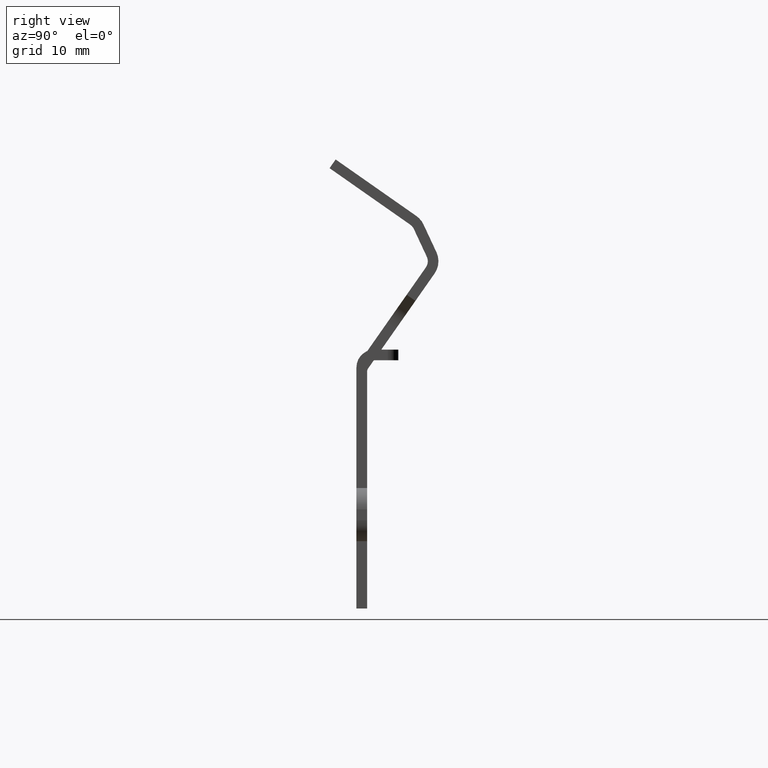
[diagram: clean part render]
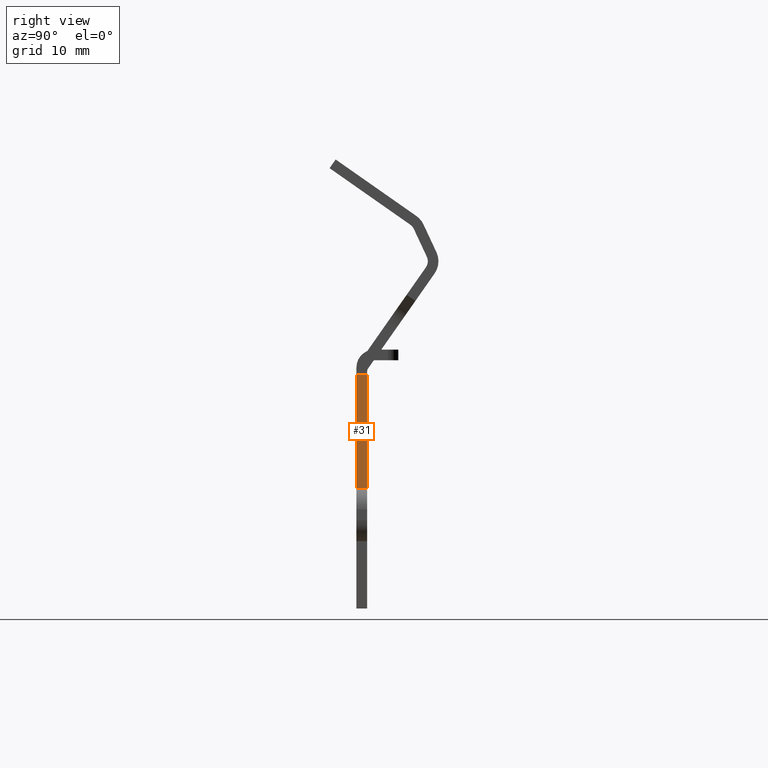
[diagram: same view with one face highlighted and labeled with its STEP entity id]
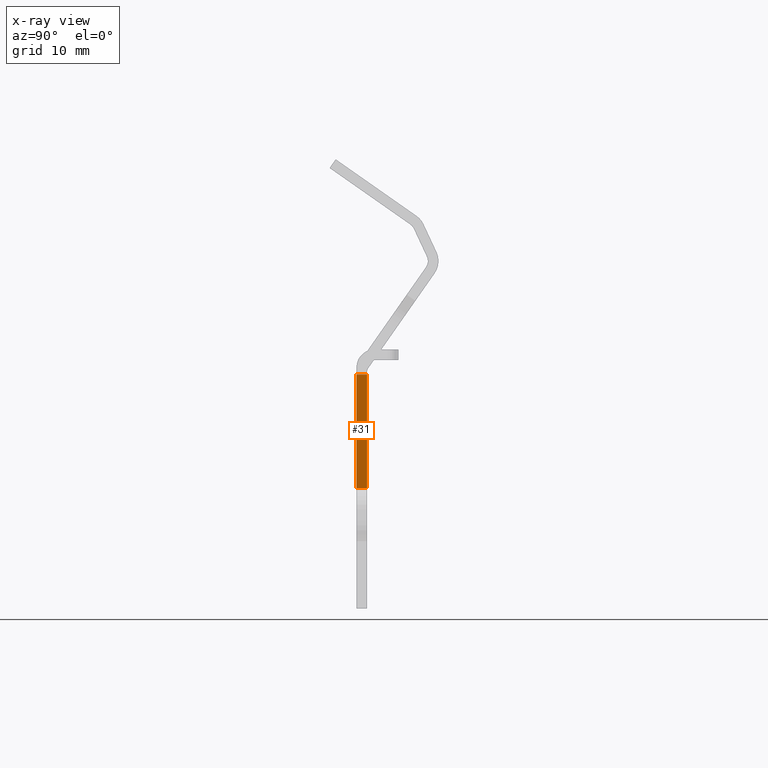
[diagram: x-ray of the same camera — body ghosted, the highlighted face saturated]
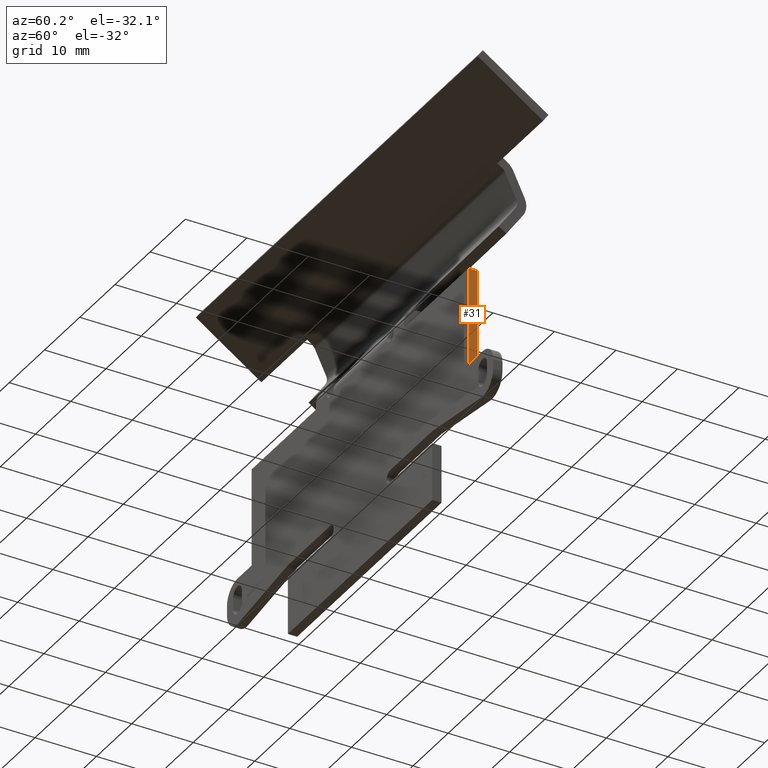
[diagram: same view with one face highlighted and labeled with its STEP entity id]
A machine part, right view. The second image highlights one B-rep face of the part: STEP entity #31.
The next image is the same camera in x-ray: the body ghosted, the highlighted face saturated — about 0% of this face is hidden behind the body in this view.
A second angle (auxiliary view) of the same face is appended — the face is thin or edge-on in the first view.
In plain terms, the highlighted planar face has unit normal (1, 0, 0).
Its self-contained STEP definition (entity closure, byte-faithful):
#31 = ADVANCED_FACE ( 'NONE', ( #2659 ), #1511, .T. ) ;
#153 = DIRECTION ( 'NONE',  ( 1.000000000000000000, 0.0000000000000000000, 0.0000000000000000000 ) ) ;
#210 = ORIENTED_EDGE ( 'NONE', *, *, #2326, .T. ) ;
#217 = CARTESIAN_POINT ( 'NONE',  ( 30.80000000000000100, 0.0000000000000000000, -39.49999999999999300 ) ) ;
#224 = LINE ( 'NONE', #2407, #779 ) ;
#262 = VERTEX_POINT ( 'NONE', #949 ) ;
#324 = CARTESIAN_POINT ( 'NONE',  ( 30.80000000000000100, -1.500000000000000000, -39.49999999999999300 ) ) ;
#334 = EDGE_CURVE ( 'NONE', #2605, #1090, #224, .T. ) ;
#350 = DIRECTION ( 'NONE',  ( -0.0000000000000000000, -0.0000000000000000000, -1.000000000000000000 ) ) ;
#467 = LINE ( 'NONE', #1695, #994 ) ;
#523 = DIRECTION ( 'NONE',  ( -0.0000000000000000000, -0.0000000000000000000, -1.000000000000000000 ) ) ;
#654 = CARTESIAN_POINT ( 'NONE',  ( 30.80000000000000100, 0.0000000000000000000, -55.49999999999999300 ) ) ;
#700 = VECTOR ( 'NONE', #1217, 1000.000000000000000 ) ;
#708 = CARTESIAN_POINT ( 'NONE',  ( 30.80000000000000100, -1.500000000000000000, -39.49999999999999300 ) ) ;
#719 = ORIENTED_EDGE ( 'NONE', *, *, #2182, .F. ) ;
#779 = VECTOR ( 'NONE', #350, 1000.000000000000000 ) ;
#898 = AXIS2_PLACEMENT_3D ( 'NONE', #1261, #153, #1757 ) ;
#941 = LINE ( 'NONE', #1440, #2720 ) ;
#949 = CARTESIAN_POINT ( 'NONE',  ( 30.80000000000000100, -1.500000000000000000, -55.49999999999999300 ) ) ;
#992 = ORIENTED_EDGE ( 'NONE', *, *, #334, .F. ) ;
#994 = VECTOR ( 'NONE', #1541, 1000.000000000000000 ) ;
#997 = EDGE_CURVE ( 'NONE', #262, #1090, #467, .T. ) ;
#1003 = ORIENTED_EDGE ( 'NONE', *, *, #997, .T. ) ;
#1090 = VERTEX_POINT ( 'NONE', #654 ) ;
#1217 = DIRECTION ( 'NONE',  ( 0.0000000000000000000, 1.000000000000000000, 0.0000000000000000000 ) ) ;
#1261 = CARTESIAN_POINT ( 'NONE',  ( 30.80000000000000100, -1.500000000000000000, -55.49999999999999300 ) ) ;
#1440 = CARTESIAN_POINT ( 'NONE',  ( 30.80000000000000100, -1.500000000000000000, -55.49999999999999300 ) ) ;
#1511 = PLANE ( 'NONE',  #898 ) ;
#1541 = DIRECTION ( 'NONE',  ( 0.0000000000000000000, 1.000000000000000000, 0.0000000000000000000 ) ) ;
#1695 = CARTESIAN_POINT ( 'NONE',  ( 30.80000000000000100, -1.500000000000000000, -55.49999999999999300 ) ) ;
#1757 = DIRECTION ( 'NONE',  ( 0.0000000000000000000, 0.0000000000000000000, -1.000000000000000000 ) ) ;
#2182 = EDGE_CURVE ( 'NONE', #2239, #2605, #2610, .T. ) ;
#2239 = VERTEX_POINT ( 'NONE', #708 ) ;
#2289 = EDGE_LOOP ( 'NONE', ( #992, #719, #210, #1003 ) ) ;
#2326 = EDGE_CURVE ( 'NONE', #2239, #262, #941, .T. ) ;
#2407 = CARTESIAN_POINT ( 'NONE',  ( 30.80000000000000100, 0.0000000000000000000, -55.49999999999999300 ) ) ;
#2605 = VERTEX_POINT ( 'NONE', #217 ) ;
#2610 = LINE ( 'NONE', #324, #700 ) ;
#2659 = FACE_OUTER_BOUND ( 'NONE', #2289, .T. ) ;
#2720 = VECTOR ( 'NONE', #523, 1000.000000000000000 ) ;